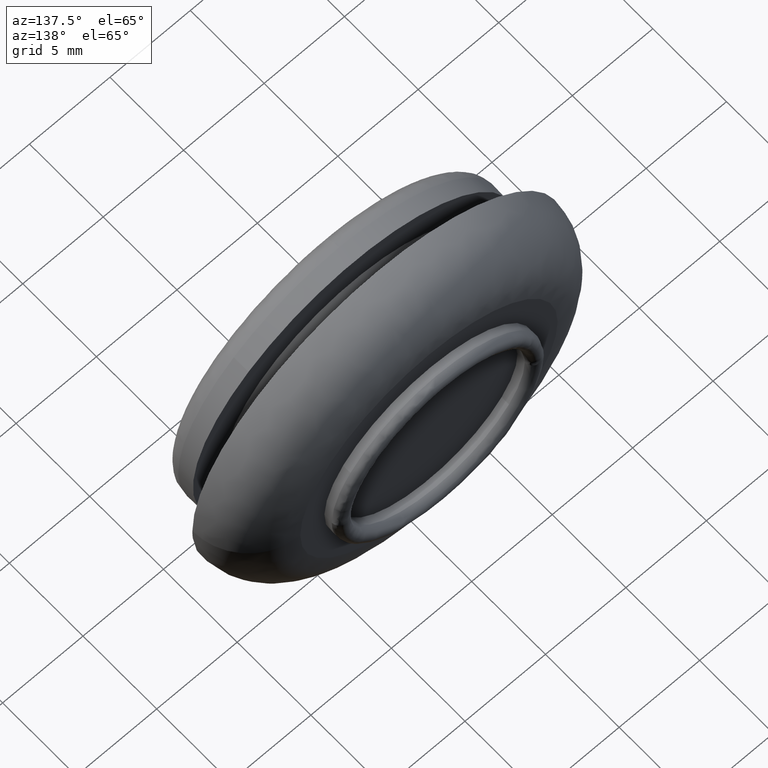
[diagram: clean part render]
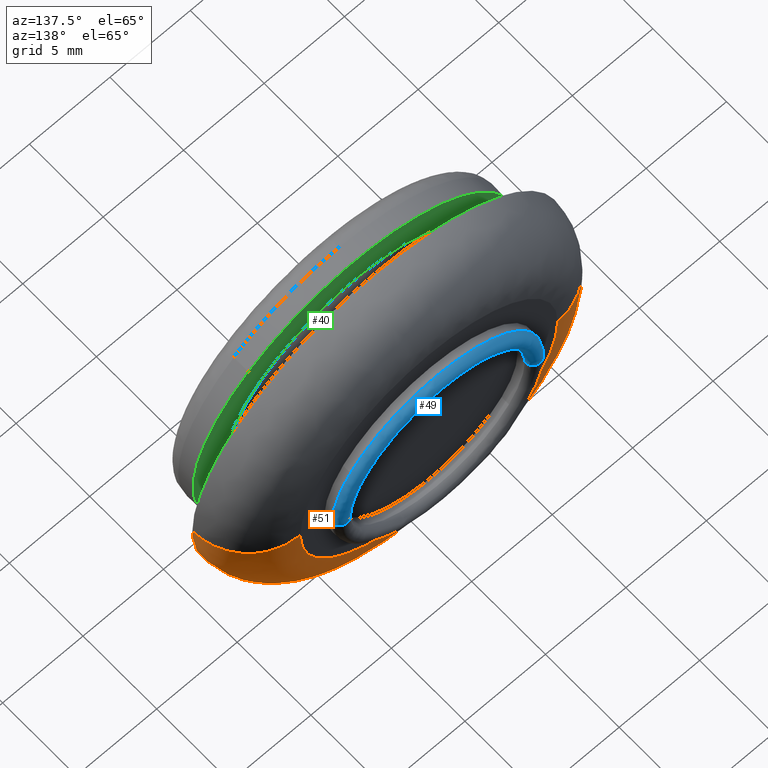
[diagram: same view with three faces highlighted in distinct colors, each labeled with its STEP entity id]
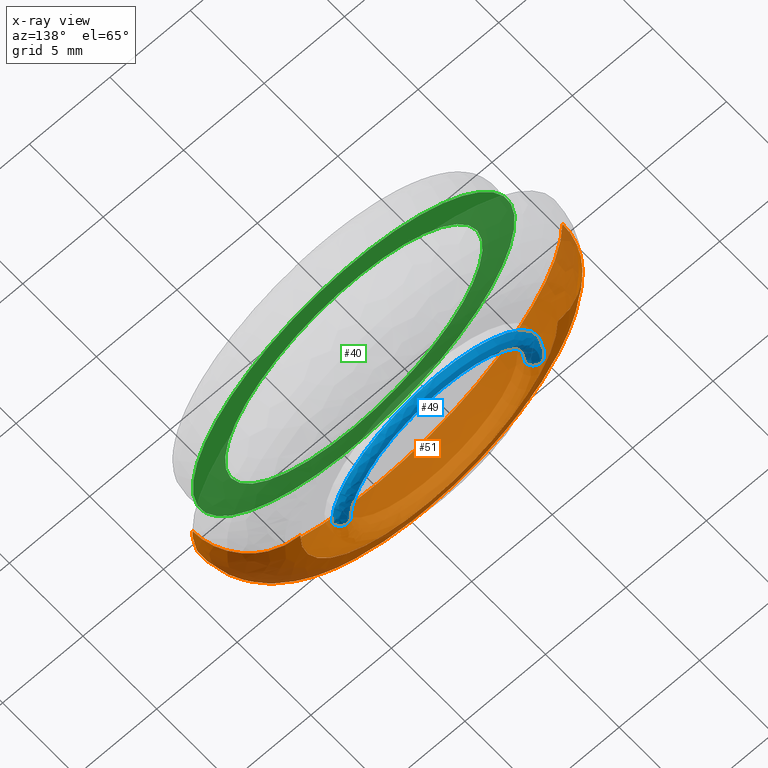
[diagram: x-ray of the same camera — body ghosted, the three highlighted faces saturated]
A machine part, auxiliary view with three faces highlighted in distinct colors.
The next image is the same camera in x-ray (body ghosted, the three faces saturated) — at least one of them is partly hidden behind the body in this view.
Their STEP definitions:

[orange] entity #51 — the highlighted face is a freeform B-spline surface patch.
#51=ADVANCED_FACE('',(#177),#176,.T.);
#176=( BOUNDED_SURFACE() B_SPLINE_SURFACE( 2,2,((#450,#451,#452,#453,#454),(#455,#456,#457,#458,#459),(#460,#461,#462,#463,#464),(#465,#466,#467,#468,#469),(#470,#471,#472,#473,#474)), .UNSPECIFIED.,.F.,.F.,.F.) B_SPLINE_SURFACE_WITH_KNOTS((3,2,3),(3,2,3),(-1.57079632680E+000,-1.04711689383E+000,2.41972093203E-004),(3.14159265359E+000,4.71238898038E+000,6.28318530718E+000), .UNSPECIFIED. ) GEOMETRIC_REPRESENTATION_ITEM() RATIONAL_B_SPLINE_SURFACE(((9.32992536143E-001,6.59725349103E-001,9.32992536143E-001,6.59725349103E-001,9.32992536143E-001),(9.32992536143E-001,6.59725349103E-001,9.32992536143E-001,6.59725349103E-001,9.32992536143E-001),(1.00000000000E+000,7.07106781187E-001,1.00000000000E+000,7.07106781187E-001,1.00000000000E+000),(8.65985072285E-001,6.12343917019E-001,8.65985072285E-001,6.12343917019E-001,8.65985072285E-001),(1.00000000000E+000,7.07106781187E-001,1.00000000000E+000,7.07106781187E-001,1.00000000000E+000))) REPRESENTATION_ITEM('') SURFACE() );
#177=FACE_OUTER_BOUND('',#475,.T.);
#450=CARTESIAN_POINT('',(8.00000000000E+000,7.10000000000E+000,5.39042652447E-014));
#451=CARTESIAN_POINT('',(8.00000000000E+000,7.10000000000E+000,-8.00000000000E+000));
#452=CARTESIAN_POINT('',(-1.03340667209E-012,7.10000000000E+000,-8.00000000000E+000));
#453=CARTESIAN_POINT('',(-8.00000000000E+000,7.10000000000E+000,-8.00000000000E+000));
#454=CARTESIAN_POINT('',(-8.00000000000E+000,7.10000000000E+000,5.58636354108E-014));
#455=CARTESIAN_POINT('',(8.93797345967E+000,7.10000000000E+000,5.37894004188E-014));
#456=CARTESIAN_POINT('',(8.93797345967E+000,7.10000000000E+000,-8.93797345967E+000));
#457=CARTESIAN_POINT('',(-1.03352153691E-012,7.10000000000E+000,-8.93797345967E+000));
#458=CARTESIAN_POINT('',(-8.93797345967E+000,7.10000000000E+000,-8.93797345967E+000));
#459=CARTESIAN_POINT('',(-8.93797345967E+000,7.10000000000E+000,5.59785002366E-014));
#460=CARTESIAN_POINT('',(9.75024447395E+000,6.63094775300E+000,5.06500490489E-014));
#461=CARTESIAN_POINT('',(9.75024447395E+000,6.63094775300E+000,-9.75024447395E+000));
#462=CARTESIAN_POINT('',(-9.37571529207E-013,6.63094775300E+000,-9.75024447395E+000));
#463=CARTESIAN_POINT('',(-9.75024447395E+000,6.63094775299E+000,-9.75024447395E+000));
#464=CARTESIAN_POINT('',(-9.75024447395E+000,6.63094775299E+000,5.30380913157E-014));
#465=CARTESIAN_POINT('',(1.15004889479E+001,5.62025539924E+000,4.38855181345E-014));
#466=CARTESIAN_POINT('',(1.15004889479E+001,5.62025539924E+000,-1.15004889479E+001));
#467=CARTESIAN_POINT('',(-7.30822835966E-013,5.62025539924E+000,-1.15004889479E+001));
#468=CARTESIAN_POINT('',(-1.15004889479E+001,5.62025539924E+000,-1.15004889479E+001));
#469=CARTESIAN_POINT('',(-1.15004889479E+001,5.62025539924E+000,4.67022325020E-014));
#470=CARTESIAN_POINT('',(1.14999998975E+001,3.59915309768E+000,3.07870185403E-014));
#471=CARTESIAN_POINT('',(1.14999998975E+001,3.59915309768E+000,-1.14999998975E+001));
#472=CARTESIAN_POINT('',(-3.16954546755E-013,3.59915309768E+000,-1.14999998975E+001));
#473=CARTESIAN_POINT('',(-1.14999998975E+001,3.59915309768E+000,-1.14999998975E+001));
#474=CARTESIAN_POINT('',(-1.14999998975E+001,3.59915309768E+000,3.36036131290E-014));
#475=EDGE_LOOP('',(#596,#597,#598,#599,#600,#601,#602));
#596=ORIENTED_EDGE('',*,*,#689,.F.);
#597=ORIENTED_EDGE('',*,*,#688,.F.);
#598=ORIENTED_EDGE('',*,*,#693,.F.);
#599=ORIENTED_EDGE('',*,*,#724,.F.);
#600=ORIENTED_EDGE('',*,*,#683,.T.);
#601=ORIENTED_EDGE('',*,*,#685,.T.);
#602=ORIENTED_EDGE('',*,*,#725,.T.);
#683=EDGE_CURVE('',#855,#856,#857,.T.);
#685=EDGE_CURVE('',#856,#863,#870,.T.);
#688=EDGE_CURVE('',#890,#891,#892,.T.);
#689=EDGE_CURVE('',#891,#898,#899,.T.);
#693=EDGE_CURVE('',#919,#890,#926,.T.);
#724=EDGE_CURVE('',#855,#919,#1138,.T.);
#725=EDGE_CURVE('',#863,#898,#1144,.T.);
#855=VERTEX_POINT('',#1295);
#856=VERTEX_POINT('',#1296);
#857=CIRCLE('',#1300,8.00000000002E+000);
#863=VERTEX_POINT('',#1301);
#870=CIRCLE('',#1309,8.00000000002E+000);
#890=VERTEX_POINT('',#1320);
#891=VERTEX_POINT('',#1321);
#892=CIRCLE('',#1325,1.15000000000E+001);
#898=VERTEX_POINT('',#1326);
#899=CIRCLE('',#1330,1.15000000000E+001);
#919=VERTEX_POINT('',#1341);
#926=CIRCLE('',#1349,1.15000000000E+001);
#1138=(BOUNDED_CURVE() B_SPLINE_CURVE(2,(#1496,#1497,#1498,#1499,#1500),.UNSPECIFIED.,.F.,.F.) B_SPLINE_CURVE_WITH_KNOTS((3,2,3),(-1.57079631639E+000,-1.04711689383E+000,-1.05781695373E-005),.UNSPECIFIED.) CURVE() GEOMETRIC_REPRESENTATION_ITEM() RATIONAL_B_SPLINE_CURVE((9.32992536143E-001,9.32992537474E-001,1.00000000000E+000,8.66017387384E-001,9.99935385387E-001)) REPRESENTATION_ITEM('') );
#1144=(BOUNDED_CURVE() B_SPLINE_CURVE(2,(#1501,#1502,#1503,#1504,#1505),.UNSPECIFIED.,.F.,.F.) B_SPLINE_CURVE_WITH_KNOTS((3,2,3),(-1.57079632680E+000,-1.04711689383E+000,2.41972093203E-004),.UNSPECIFIED.) CURVE() GEOMETRIC_REPRESENTATION_ITEM() RATIONAL_B_SPLINE_CURVE((9.32992536143E-001,9.32992536143E-001,1.00000000000E+000,8.65985072285E-001,1.00000000000E+000)) REPRESENTATION_ITEM('') );
#1295=CARTESIAN_POINT('',(-8.00000000003E+000,7.10000000000E+000,-1.21282595444E-007));
#1296=CARTESIAN_POINT('',(-1.44328993201E-015,7.10000000000E+000,-8.00000000004E+000));
#1297=CARTESIAN_POINT('',(-7.94253551817E-012,7.10000000000E+000,-1.81370474195E-011));
#1298=DIRECTION('',(7.16935703112E-016,-1.00000000000E+000,7.07188940319E-015));
#1299=DIRECTION('',(9.93011228800E-013,-7.07188940319E-015,-1.00000000000E+000));
#1300=AXIS2_PLACEMENT_3D('',#1297,#1298,#1299);
#1301=CARTESIAN_POINT('',(8.00000000001E+000,7.10000000000E+000,4.04086446069E-008));
#1306=CARTESIAN_POINT('',(-7.94253551817E-012,7.10000000000E+000,-1.81370474195E-011));
#1307=DIRECTION('',(7.16935703112E-016,-1.00000000000E+000,7.07188940319E-015));
#1308=DIRECTION('',(9.93011228800E-013,-7.07188940319E-015,-1.00000000000E+000));
#1309=AXIS2_PLACEMENT_3D('',#1306,#1307,#1308);
#1320=CARTESIAN_POINT('',(0.00000000000E+000,3.60000000000E+000,-1.15000000000E+001));
#1321=CARTESIAN_POINT('',(1.14720054304E+001,3.59999723197E+000,-8.01929800959E-001));
#1322=CARTESIAN_POINT('',(-6.89226453687E-013,3.59999861598E+000,-1.93534077653E-012));
#1323=DIRECTION('',(-1.29055765640E-007,-1.00000000000E+000,-1.20349284355E-007));
#1324=DIRECTION('',(-5.99327351033E-014,-1.20349284355E-007,1.00000000000E+000));
#1325=AXIS2_PLACEMENT_3D('',#1322,#1323,#1324);
#1326=CARTESIAN_POINT('',(1.15000000000E+001,3.59999732534E+000,1.92421795219E-006));
#1327=CARTESIAN_POINT('',(-4.37871960912E-013,3.59999861598E+000,1.91668902971E-012));
#1328=DIRECTION('',(-1.12230167096E-007,-1.00000000000E+000,1.20349286927E-007));
#1329=DIRECTION('',(-9.97565689597E-001,1.20349284007E-007,6.97330261706E-002));
#1330=AXIS2_PLACEMENT_3D('',#1327,#1328,#1329);
#1341=CARTESIAN_POINT('',(-1.15000000000E+001,3.59999720316E+000,-1.50200898150E-007));
#1346=CARTESIAN_POINT('',(8.68638494467E-013,3.59999859280E+000,-3.93907129137E-012));
#1347=DIRECTION('',(1.20837566006E-007,-1.00000000000E+000,-1.22365596803E-007));
#1348=DIRECTION('',(9.99921052643E-001,1.22365594990E-007,-1.25653682960E-002));
#1349=AXIS2_PLACEMENT_3D('',#1346,#1347,#1348);
#1496=CARTESIAN_POINT('',(-8.00000003727E+000,7.10000000000E+000,5.58636354153E-014));
#1497=CARTESIAN_POINT('',(-8.93797347697E+000,7.09999999001E+000,5.59785001740E-014));
#1498=CARTESIAN_POINT('',(-9.75024447395E+000,6.63094775299E+000,5.30380913157E-014));
#1499=CARTESIAN_POINT('',(-1.15000016165E+001,5.62053681258E+000,4.67039966345E-014));
#1500=CARTESIAN_POINT('',(-1.15000000000E+001,3.59999719991E+000,3.36090836827E-014));
#1501=CARTESIAN_POINT('',(8.00000000000E+000,7.10000000000E+000,5.39042652447E-014));
#1502=CARTESIAN_POINT('',(8.93797345967E+000,7.10000000000E+000,5.37894004188E-014));
#1503=CARTESIAN_POINT('',(9.75024447395E+000,6.63094775300E+000,5.06500490489E-014));
#1504=CARTESIAN_POINT('',(1.15004889479E+001,5.62025539924E+000,4.38855181345E-014));
#1505=CARTESIAN_POINT('',(1.14999998975E+001,3.59915309768E+000,3.07870185403E-014));

[blue] entity #49 — the highlighted face is a freeform B-spline surface patch.
#49=ADVANCED_FACE('',(#157),#156,.T.);
#156=( BOUNDED_SURFACE() B_SPLINE_SURFACE( 2,2,((#398,#399,#400,#401,#402),(#403,#404,#405,#406,#407),(#408,#409,#410,#411,#412),(#413,#414,#415,#416,#417),(#418,#419,#420,#421,#422)), .UNSPECIFIED.,.F.,.F.,.F.) B_SPLINE_SURFACE_WITH_KNOTS((3,2,3),(3,2,3),(0.00000000000E+000,5.00000000000E-001,1.00000000000E+000),(0.00000000000E+000,5.00000000000E-001,1.00000000000E+000), .UNSPECIFIED. ) GEOMETRIC_REPRESENTATION_ITEM() RATIONAL_B_SPLINE_SURFACE(((1.00000000000E+000,7.07106780491E-001,1.00000000000E+000,7.07106780491E-001,1.00000000000E+000),(7.07106781187E-001,4.99999999508E-001,7.07106781187E-001,4.99999999508E-001,7.07106781187E-001),(1.00000000000E+000,7.07106780491E-001,1.00000000000E+000,7.07106780491E-001,1.00000000000E+000),(7.07106781187E-001,4.99999999508E-001,7.07106781187E-001,4.99999999508E-001,7.07106781187E-001),(1.00000000000E+000,7.07106780491E-001,1.00000000000E+000,7.07106780491E-001,1.00000000000E+000))) REPRESENTATION_ITEM('') SURFACE() );
#157=FACE_OUTER_BOUND('',#423,.T.);
#398=CARTESIAN_POINT('',(5.50000000000E+000,7.59999999804E+000,-3.63750051582E-014));
#399=CARTESIAN_POINT('',(5.49999999804E+000,8.09999999902E+000,-2.96626060424E-014));
#400=CARTESIAN_POINT('',(5.99999999902E+000,8.10000000000E+000,-2.96626080514E-014));
#401=CARTESIAN_POINT('',(6.50000000000E+000,8.10000000099E+000,-2.96626100605E-014));
#402=CARTESIAN_POINT('',(6.50000000000E+000,7.60000000000E+000,-3.63750091763E-014));
#403=CARTESIAN_POINT('',(5.50000000000E+000,7.59999999803E+000,5.50000000000E+000));
#404=CARTESIAN_POINT('',(5.49999999804E+000,8.09999999902E+000,5.49999999803E+000));
#405=CARTESIAN_POINT('',(5.99999999902E+000,8.10000000000E+000,5.99999999902E+000));
#406=CARTESIAN_POINT('',(6.50000000000E+000,8.10000000099E+000,6.50000000000E+000));
#407=CARTESIAN_POINT('',(6.50000000000E+000,7.60000000000E+000,6.50000000000E+000));
#408=CARTESIAN_POINT('',(1.80184713029E-012,7.59999999803E+000,5.50000000000E+000));
#409=CARTESIAN_POINT('',(1.70582315166E-012,8.09999999902E+000,5.49999999803E+000));
#410=CARTESIAN_POINT('',(1.70585376966E-012,8.10000000000E+000,5.99999999902E+000));
#411=CARTESIAN_POINT('',(1.70588438766E-012,8.10000000098E+000,6.50000000000E+000));
#412=CARTESIAN_POINT('',(1.80190836630E-012,7.60000000000E+000,6.50000000000E+000));
#413=CARTESIAN_POINT('',(-5.50000000000E+000,7.59999999803E+000,5.50000000000E+000));
#414=CARTESIAN_POINT('',(-5.49999999803E+000,8.09999999902E+000,5.49999999803E+000));
#415=CARTESIAN_POINT('',(-5.99999999902E+000,8.10000000000E+000,5.99999999902E+000));
#416=CARTESIAN_POINT('',(-6.50000000000E+000,8.10000000098E+000,6.50000000000E+000));
#417=CARTESIAN_POINT('',(-6.50000000000E+000,7.60000000000E+000,6.50000000000E+000));
#418=CARTESIAN_POINT('',(-5.50000000000E+000,7.59999999803E+000,-3.57014049288E-014));
#419=CARTESIAN_POINT('',(-5.49999999803E+000,8.09999999902E+000,-2.89890058132E-014));
#420=CARTESIAN_POINT('',(-5.99999999902E+000,8.10000000000E+000,-2.89277714377E-014));
#421=CARTESIAN_POINT('',(-6.50000000000E+000,8.10000000098E+000,-2.88665370621E-014));
#422=CARTESIAN_POINT('',(-6.50000000000E+000,7.60000000000E+000,-3.55789361780E-014));
#423=EDGE_LOOP('',(#578,#579,#580,#581,#582,#583,#584,#585,#586,#587,#588,#589));
#578=ORIENTED_EDGE('',*,*,#714,.T.);
#579=ORIENTED_EDGE('',*,*,#715,.T.);
#580=ORIENTED_EDGE('',*,*,#716,.T.);
#581=ORIENTED_EDGE('',*,*,#717,.T.);
#582=ORIENTED_EDGE('',*,*,#718,.T.);
#583=ORIENTED_EDGE('',*,*,#708,.T.);
#584=ORIENTED_EDGE('',*,*,#719,.F.);
#585=ORIENTED_EDGE('',*,*,#720,.F.);
#586=ORIENTED_EDGE('',*,*,#721,.F.);
#587=ORIENTED_EDGE('',*,*,#722,.F.);
#588=ORIENTED_EDGE('',*,*,#723,.F.);
#589=ORIENTED_EDGE('',*,*,#713,.F.);
#708=EDGE_CURVE('',#1029,#1022,#1030,.T.);
#713=EDGE_CURVE('',#1057,#1008,#1064,.T.);
#714=EDGE_CURVE('',#1057,#1070,#1071,.T.);
#715=EDGE_CURVE('',#1070,#1077,#1078,.T.);
#716=EDGE_CURVE('',#1077,#1084,#1085,.T.);
#717=EDGE_CURVE('',#1084,#1091,#1092,.T.);
#718=EDGE_CURVE('',#1091,#1029,#1098,.T.);
#719=EDGE_CURVE('',#1104,#1022,#1105,.T.);
#720=EDGE_CURVE('',#1111,#1104,#1112,.T.);
#721=EDGE_CURVE('',#1118,#1111,#1119,.T.);
#722=EDGE_CURVE('',#1125,#1118,#1126,.T.);
#723=EDGE_CURVE('',#1008,#1125,#1132,.T.);
#1008=VERTEX_POINT('',#1404);
#1022=VERTEX_POINT('',#1413);
#1029=VERTEX_POINT('',#1418);
#1030=(BOUNDED_CURVE() B_SPLINE_CURVE(2,(#1419,#1420,#1421,#1422,#1423),.UNSPECIFIED.,.F.,.F.) B_SPLINE_CURVE_WITH_KNOTS((3,2,3),(0.00000000000E+000,5.00000000000E-001,1.00000000000E+000),.UNSPECIFIED.) CURVE() GEOMETRIC_REPRESENTATION_ITEM() RATIONAL_B_SPLINE_CURVE((1.00000000000E+000,7.07106780491E-001,1.00000000000E+000,7.07106780491E-001,1.00000000000E+000)) REPRESENTATION_ITEM('') );
#1057=VERTEX_POINT('',#1439);
#1064=(BOUNDED_CURVE() B_SPLINE_CURVE(2,(#1444,#1445,#1446,#1447,#1448),.UNSPECIFIED.,.F.,.F.) B_SPLINE_CURVE_WITH_KNOTS((3,2,3),(0.00000000000E+000,5.00000000000E-001,1.00000000000E+000),.UNSPECIFIED.) CURVE() GEOMETRIC_REPRESENTATION_ITEM() RATIONAL_B_SPLINE_CURVE((7.50000000000E-001,5.30330085368E-001,7.50000000000E-001,5.30330085368E-001,7.50000000000E-001)) REPRESENTATION_ITEM('') );
#1070=VERTEX_POINT('',#1449);
#1071=CIRCLE('',#1453,5.50000000002E+000);
#1077=VERTEX_POINT('',#1454);
#1078=CIRCLE('',#1458,5.50000000002E+000);
#1084=VERTEX_POINT('',#1459);
#1085=CIRCLE('',#1463,5.49999999900E+000);
#1091=VERTEX_POINT('',#1464);
#1092=CIRCLE('',#1468,5.50000000000E+000);
#1098=CIRCLE('',#1472,5.50000000000E+000);
#1104=VERTEX_POINT('',#1473);
#1105=CIRCLE('',#1477,6.50000000000E+000);
#1111=VERTEX_POINT('',#1478);
#1112=CIRCLE('',#1482,6.50000000000E+000);
#1118=VERTEX_POINT('',#1483);
#1119=CIRCLE('',#1487,6.49999999954E+000);
#1125=VERTEX_POINT('',#1488);
#1126=CIRCLE('',#1492,6.50000000001E+000);
#1132=(BOUNDED_CURVE() B_SPLINE_CURVE(2,(#1493,#1494,#1495),.UNSPECIFIED.,.F.,.F.) B_SPLINE_CURVE_WITH_KNOTS((3,3),(1.49408976336E-003,1.00000000000E+000),.UNSPECIFIED.) CURVE() GEOMETRIC_REPRESENTATION_ITEM() RATIONAL_B_SPLINE_CURVE((1.00000000000E+000,9.54078577435E-001,1.00000000000E+000)) REPRESENTATION_ITEM('') );
#1404=CARTESIAN_POINT('',(6.50000000000E+000,7.60000000000E+000,-3.58231962612E-014));
#1413=CARTESIAN_POINT('',(-6.50000000000E+000,7.59999999999E+000,-3.71335189688E-014));
#1418=CARTESIAN_POINT('',(-5.50000000000E+000,7.59999999993E+000,-3.70299536630E-014));
#1419=CARTESIAN_POINT('',(-5.50000000000E+000,7.59999999803E+000,-3.70485164079E-014));
#1420=CARTESIAN_POINT('',(-5.49999999803E+000,8.09999999902E+000,-3.03361172918E-014));
#1421=CARTESIAN_POINT('',(-5.99999999902E+000,8.10000000000E+000,-3.03973475964E-014));
#1422=CARTESIAN_POINT('',(-6.50000000000E+000,8.10000000098E+000,-3.04585779010E-014));
#1423=CARTESIAN_POINT('',(-6.50000000000E+000,7.60000000000E+000,-3.71709770169E-014));
#1439=CARTESIAN_POINT('',(5.49999999427E+000,7.60000000000E+000,2.51167221932E-004));
#1444=CARTESIAN_POINT('',(5.50000000000E+000,7.59999999804E+000,-3.58231962612E-014));
#1445=CARTESIAN_POINT('',(5.49999999804E+000,8.09999999902E+000,-2.88897012682E-014));
#1446=CARTESIAN_POINT('',(5.99999999902E+000,8.10000000000E+000,-2.81256499572E-014));
#1447=CARTESIAN_POINT('',(6.50000000000E+000,8.10000000099E+000,-2.86803556068E-014));
#1448=CARTESIAN_POINT('',(6.50000000000E+000,7.60000000000E+000,-3.58231962612E-014));
#1449=CARTESIAN_POINT('',(4.51573564347E+000,7.60000000001E+000,3.13976616936E+000));
#1450=CARTESIAN_POINT('',(-1.07873709965E-011,7.60000000008E+000,-1.69304570363E-011));
#1451=DIRECTION('',(-1.38587415746E-011,-1.00000000000E+000,-6.92729623276E-014));
#1452=DIRECTION('',(-8.21061417013E-001,1.14184217636E-011,-5.70839863265E-001));
#1453=AXIS2_PLACEMENT_3D('',#1450,#1451,#1452);
#1454=CARTESIAN_POINT('',(6.91132193707E-002,7.60000000008E+000,5.49956574312E+000));
#1455=CARTESIAN_POINT('',(-1.07873709965E-011,7.60000000008E+000,-1.69304570363E-011));
#1456=DIRECTION('',(-1.38587415746E-011,-1.00000000000E+000,-6.92729623276E-014));
#1457=DIRECTION('',(-8.21061417013E-001,1.14184217636E-011,-5.70839863265E-001));
#1458=AXIS2_PLACEMENT_3D('',#1455,#1456,#1457);
#1459=CARTESIAN_POINT('',(0.00000000000E+000,7.60000000000E+000,5.50000000000E+000));
#1460=CARTESIAN_POINT('',(6.26398932724E-012,7.60000095316E+000,1.00250741042E-009));
#1461=DIRECTION('',(5.05866376590E-014,-1.00000000000E+000,-1.73301781739E-007));
#1462=DIRECTION('',(-1.25660398867E-002,1.73288097923E-007,-9.99921044204E-001));
#1463=AXIS2_PLACEMENT_3D('',#1460,#1461,#1462);
#1464=CARTESIAN_POINT('',(-5.48661120612E+000,7.60000000007E+000,3.83532883666E-001));
#1465=CARTESIAN_POINT('',(5.85753667792E-013,7.60000000008E+000,-6.27053964308E-013));
#1466=DIRECTION('',(1.14188542449E-016,-1.00000000000E+000,-1.41943830427E-011));
#1467=DIRECTION('',(1.06500666871E-013,1.41943830427E-011,-1.00000000000E+000));
#1468=AXIS2_PLACEMENT_3D('',#1465,#1466,#1467);
#1469=CARTESIAN_POINT('',(-1.33226762955E-015,7.60000000011E+000,-2.22044604925E-015));
#1470=DIRECTION('',(3.40215170093E-011,-1.00000000000E+000,3.76790807738E-010));
#1471=DIRECTION('',(9.97565673840E-001,7.66384935311E-012,-6.97332515757E-002));
#1472=AXIS2_PLACEMENT_3D('',#1469,#1470,#1471);
#1473=CARTESIAN_POINT('',(-6.48417687996E+000,7.60000000001E+000,4.53266135242E-001));
#1474=CARTESIAN_POINT('',(2.22044604925E-015,7.60000000001E+000,4.44089209850E-016));
#1475=DIRECTION('',(3.50320974777E-012,-1.00000000000E+000,3.88027612648E-011));
#1476=DIRECTION('',(9.97565673840E-001,7.88839079528E-013,-6.97332515757E-002));
#1477=AXIS2_PLACEMENT_3D('',#1474,#1475,#1476);
#1478=CARTESIAN_POINT('',(0.00000000000E+000,7.60000000000E+000,6.50000000000E+000));
#1479=CARTESIAN_POINT('',(9.17044218340E-013,7.60000000001E+000,-9.81437153769E-013));
#1480=DIRECTION('',(1.93242148761E-016,-1.00000000000E+000,-1.46166839316E-012));
#1481=DIRECTION('',(1.41083725898E-013,1.46166839316E-012,-1.00000000000E+000));
#1482=AXIS2_PLACEMENT_3D('',#1479,#1480,#1481);
#1483=CARTESIAN_POINT('',(8.16792592465E-002,7.60000000001E+000,6.49948678732E+000));
#1484=CARTESIAN_POINT('',(2.69764072192E-012,7.60000011629E+000,4.58020288363E-010));
#1485=DIRECTION('',(1.88311822725E-013,-1.00000000000E+000,-1.78902138586E-008));
#1486=DIRECTION('',(-1.25660398845E-002,1.78887989562E-008,-9.99921044204E-001));
#1487=AXIS2_PLACEMENT_3D('',#1484,#1485,#1486);
#1488=CARTESIAN_POINT('',(5.33677905559E+000,7.60000000000E+000,3.71063192891E+000));
#1489=CARTESIAN_POINT('',(-4.11137790479E-012,7.60000000001E+000,-5.73852076968E-012));
#1490=DIRECTION('',(-1.43166619320E-012,-1.00000000000E+000,3.55744478778E-014));
#1491=DIRECTION('',(-8.21061387763E-001,1.15517851694E-012,-5.70839905337E-001));
#1492=AXIS2_PLACEMENT_3D('',#1489,#1490,#1491);
#1493=CARTESIAN_POINT('',(6.50000000000E+000,7.60000000000E+000,-3.58231962612E-014));
#1494=CARTESIAN_POINT('',(6.50182327992E+000,7.60000000000E+000,2.03501878959E+000));
#1495=CARTESIAN_POINT('',(5.33677905559E+000,7.60000000000E+000,3.71063192891E+000));

[green] entity #40 — the highlighted planar face has unit normal (0, -1, 0).
#40=ADVANCED_FACE('',(#63,#64),#62,.F.);
#62=PLANE('',#289);
#63=FACE_OUTER_BOUND('',#290,.T.);
#64=FACE_BOUND('',#291,.T.);
#286=CARTESIAN_POINT('',(-2.28296936472E+001,2.00000000000E+000,2.24563294141E+001));
#287=DIRECTION('',(0.00000000000E+000,-1.00000000000E+000,0.00000000000E+000));
#288=DIRECTION('',(0.00000000000E+000,0.00000000000E+000,-1.00000000000E+000));
#289=AXIS2_PLACEMENT_3D('',#286,#287,#288);
#290=EDGE_LOOP('',(#526,#527,#528));
#291=EDGE_LOOP('',(#529,#530,#531));
#526=ORIENTED_EDGE('',*,*,#666,.F.);
#527=ORIENTED_EDGE('',*,*,#667,.F.);
#528=ORIENTED_EDGE('',*,*,#668,.F.);
#529=ORIENTED_EDGE('',*,*,#669,.T.);
#530=ORIENTED_EDGE('',*,*,#670,.T.);
#531=ORIENTED_EDGE('',*,*,#671,.T.);
#666=EDGE_CURVE('',#736,#737,#738,.T.);
#667=EDGE_CURVE('',#744,#736,#745,.T.);
#668=EDGE_CURVE('',#737,#744,#751,.T.);
#669=EDGE_CURVE('',#757,#758,#759,.T.);
#670=EDGE_CURVE('',#758,#765,#766,.T.);
#671=EDGE_CURVE('',#765,#757,#772,.T.);
#736=VERTEX_POINT('',#1210);
#737=VERTEX_POINT('',#1211);
#738=CIRCLE('',#1215,1.00000005624E+001);
#744=VERTEX_POINT('',#1216);
#745=CIRCLE('',#1220,1.00000005624E+001);
#751=CIRCLE('',#1224,1.00000005624E+001);
#757=VERTEX_POINT('',#1225);
#758=VERTEX_POINT('',#1226);
#759=CIRCLE('',#1230,8.00000000000E+000);
#765=VERTEX_POINT('',#1231);
#766=CIRCLE('',#1235,8.00000000000E+000);
#772=CIRCLE('',#1239,8.00000000000E+000);
#1210=CARTESIAN_POINT('',(6.54339691820E+000,2.00000000000E+000,7.56200894396E+000));
#1211=CARTESIAN_POINT('',(-6.75590224456E+000,2.00000000000E+000,7.37277434707E+000));
#1212=CARTESIAN_POINT('',(2.09559053665E-007,2.00000000000E+000,5.62441492491E-007));
#1213=DIRECTION('',(1.22515352182E-016,-1.00000000000E+000,5.47299144604E-015));
#1214=DIRECTION('',(-6.75590207414E-001,3.95234238654E-015,7.37277336995E-001));
#1215=AXIS2_PLACEMENT_3D('',#1212,#1213,#1214);
#1216=CARTESIAN_POINT('',(-6.54317197924E+000,2.00000000000E+000,-7.56220209000E+000));
#1217=CARTESIAN_POINT('',(2.09559053665E-007,2.00000000000E+000,5.62441492491E-007));
#1218=DIRECTION('',(1.22515352182E-016,-1.00000000000E+000,5.47299144604E-015));
#1219=DIRECTION('',(-6.75590207414E-001,3.95234238654E-015,7.37277336995E-001));
#1220=AXIS2_PLACEMENT_3D('',#1217,#1218,#1219);
#1221=CARTESIAN_POINT('',(2.09559053665E-007,2.00000000000E+000,5.62441492491E-007));
#1222=DIRECTION('',(1.22515352182E-016,-1.00000000000E+000,5.47299144604E-015));
#1223=DIRECTION('',(-6.75590207414E-001,3.95234238654E-015,7.37277336995E-001));
#1224=AXIS2_PLACEMENT_3D('',#1221,#1222,#1223);
#1225=CARTESIAN_POINT('',(-9.79685083214E-016,2.00000000000E+000,-8.00000000000E+000));
#1226=CARTESIAN_POINT('',(7.94391288830E+000,2.00000000000E+000,-9.45646880722E-001));
#1227=CARTESIAN_POINT('',(-3.10862446895E-013,2.00000000000E+000,2.01261229904E-012));
#1228=DIRECTION('',(0.00000000000E+000,-1.00000000000E+000,0.00000000000E+000));
#1229=DIRECTION('',(3.93018950717E-014,0.00000000000E+000,-1.00000000000E+000));
#1230=AXIS2_PLACEMENT_3D('',#1227,#1228,#1229);
#1231=CARTESIAN_POINT('',(-7.94407623198E+000,2.00000000000E+000,9.44273699999E-001));
#1232=CARTESIAN_POINT('',(-3.10862446895E-013,2.00000000000E+000,2.01261229904E-012));
#1233=DIRECTION('',(0.00000000000E+000,-1.00000000000E+000,0.00000000000E+000));
#1234=DIRECTION('',(3.93018950717E-014,0.00000000000E+000,-1.00000000000E+000));
#1235=AXIS2_PLACEMENT_3D('',#1232,#1233,#1234);
#1236=CARTESIAN_POINT('',(-3.10862446895E-013,2.00000000000E+000,2.01261229904E-012));
#1237=DIRECTION('',(0.00000000000E+000,-1.00000000000E+000,0.00000000000E+000));
#1238=DIRECTION('',(3.93018950717E-014,0.00000000000E+000,-1.00000000000E+000));
#1239=AXIS2_PLACEMENT_3D('',#1236,#1237,#1238);